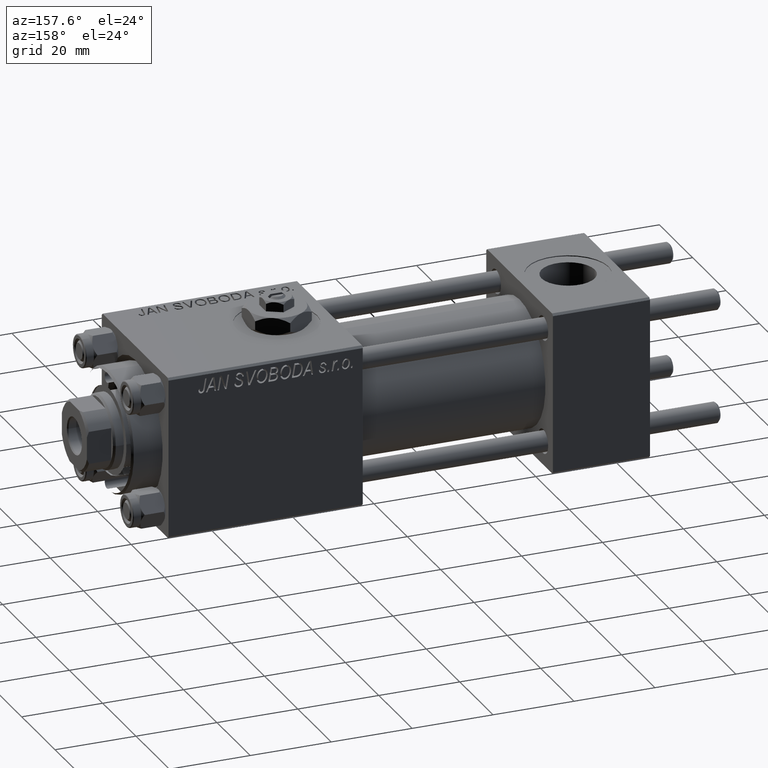
[diagram: clean part render]
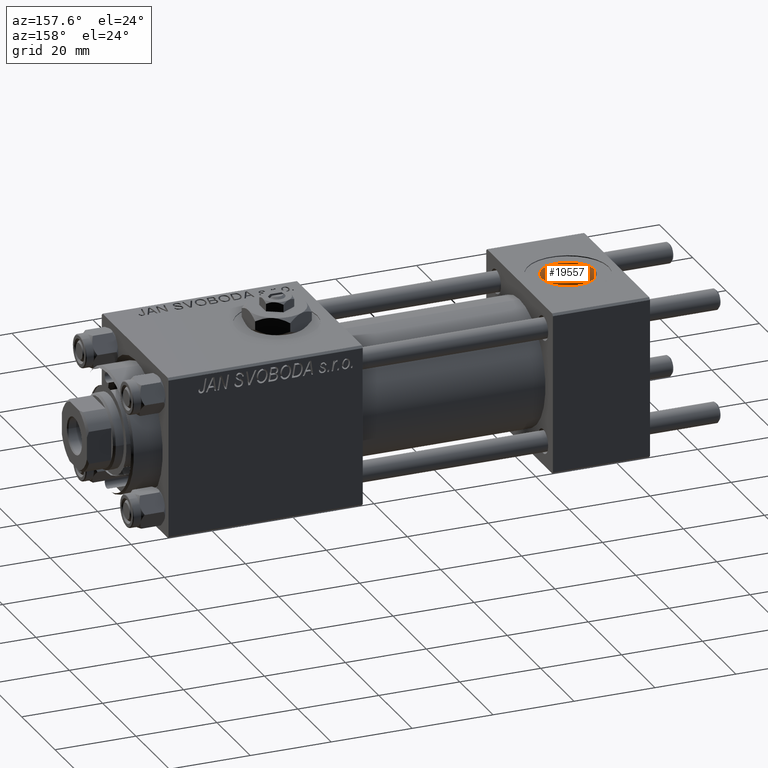
[diagram: same view with one face highlighted and labeled with its STEP entity id]
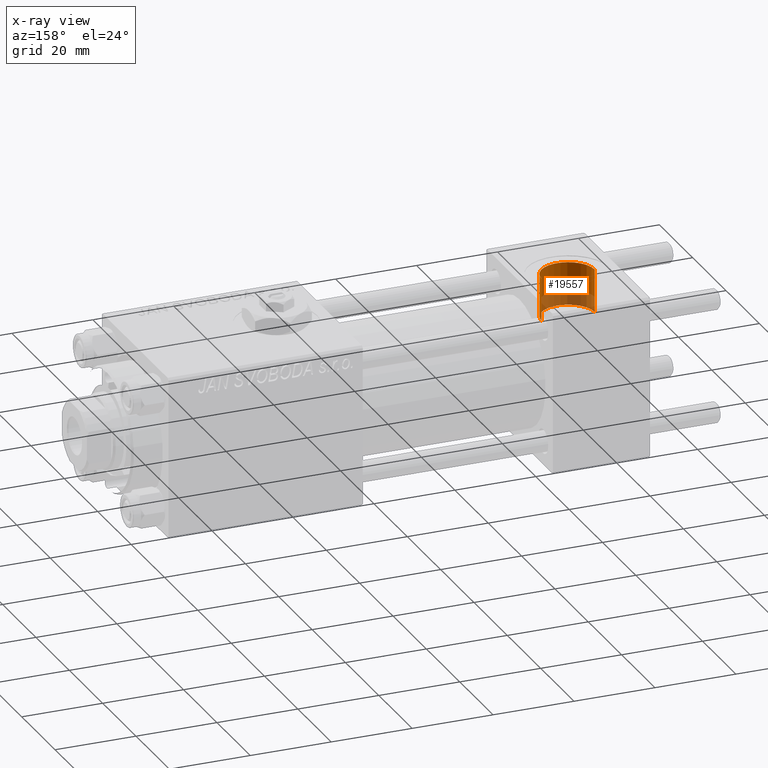
[diagram: x-ray of the same camera — body ghosted, the highlighted face saturated]
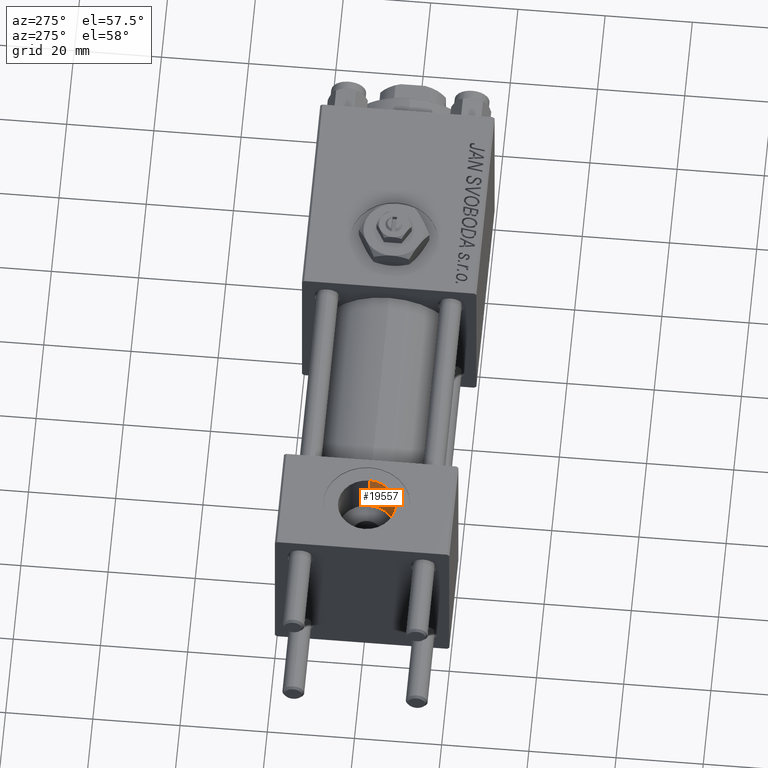
[diagram: same view with one face highlighted and labeled with its STEP entity id]
A machine part, auxiliary view. The second image highlights one B-rep face of the part: STEP entity #19557.
The next image is the same camera in x-ray: the body ghosted, the highlighted face saturated — about 34% of this face is hidden behind the body in this view.
A second angle (auxiliary view) of the same face is appended — the face is thin or edge-on in the first view.
In plain terms, the highlighted cylindrical surface (edge-blend (fillet) strip) has radius 6.58 mm, axis along (0, 0, 1).
Its self-contained STEP definition (entity closure, byte-faithful):
#2219 = VERTEX_POINT ( 'NONE', #29904 ) ;
#3578 = CARTESIAN_POINT ( 'NONE',  ( 5.420000000000000817, 8.058175938389596335E-16, 9.165987261146492315 ) ) ;
#6050 = DIRECTION ( 'NONE',  ( -0.000000000000000000, -0.000000000000000000, -1.000000000000000000 ) ) ;
#6979 = CARTESIAN_POINT ( 'NONE',  ( 5.420000000000000817, 8.058175938389596335E-16, 19.79999999999999716 ) ) ;
#8350 = VECTOR ( 'NONE', #30806, 1000.000000000000000 ) ;
#8401 = ORIENTED_EDGE ( 'NONE', *, *, #31089, .F. ) ;
#10121 = VERTEX_POINT ( 'NONE', #25577 ) ;
#10503 = EDGE_CURVE ( 'NONE', #30425, #2219, #16556, .T. ) ;
#14423 = DIRECTION ( 'NONE',  ( 1.000000000000000000, 0.000000000000000000, 0.000000000000000000 ) ) ;
#14589 = LINE ( 'NONE', #26639, #19523 ) ;
#15503 = CYLINDRICAL_SURFACE ( 'NONE', #19224, 6.579999999999999183 ) ;
#16556 = CIRCLE ( 'NONE', #45891, 6.579999999999999183 ) ;
#17900 = CARTESIAN_POINT ( 'NONE',  ( 12.00000000000000000, 1.540743955509788682E-30, 19.79999999999999716 ) ) ;
#19185 = FACE_OUTER_BOUND ( 'NONE', #51924, .T. ) ;
#19224 = AXIS2_PLACEMENT_3D ( 'NONE', #43851, #31512, #51730 ) ;
#19523 = VECTOR ( 'NONE', #22714, 1000.000000000000000 ) ;
#19557 = ADVANCED_FACE ( 'NONE', ( #19185 ), #15503, .F. ) ;
#19733 = EDGE_CURVE ( 'NONE', #10121, #26275, #30958, .T. ) ;
#19776 = ORIENTED_EDGE ( 'NONE', *, *, #39271, .T. ) ;
#21837 = DIRECTION ( 'NONE',  ( 0.000000000000000000, 0.000000000000000000, 1.000000000000000000 ) ) ;
#22714 = DIRECTION ( 'NONE',  ( -0.000000000000000000, -0.000000000000000000, 1.000000000000000000 ) ) ;
#22945 = CARTESIAN_POINT ( 'NONE',  ( 5.420000000000000817, 8.058175938389596335E-16, 9.199999999999995737 ) ) ;
#25577 = CARTESIAN_POINT ( 'NONE',  ( 18.57999999999999829, 1.540743955509788682E-30, 9.165987261146492315 ) ) ;
#26275 = VERTEX_POINT ( 'NONE', #3578 ) ;
#26639 = CARTESIAN_POINT ( 'NONE',  ( 18.57999999999999829, 1.540743955509788682E-30, 9.199999999999995737 ) ) ;
#29904 = CARTESIAN_POINT ( 'NONE',  ( 18.57999999999999829, 1.540743955509788682E-30, 19.79999999999999716 ) ) ;
#30425 = VERTEX_POINT ( 'NONE', #6979 ) ;
#30806 = DIRECTION ( 'NONE',  ( -0.000000000000000000, -0.000000000000000000, 1.000000000000000000 ) ) ;
#30958 = CIRCLE ( 'NONE', #45226, 6.579999999999999183 ) ;
#31089 = EDGE_CURVE ( 'NONE', #10121, #2219, #14589, .T. ) ;
#31448 = ORIENTED_EDGE ( 'NONE', *, *, #19733, .T. ) ;
#31512 = DIRECTION ( 'NONE',  ( -0.000000000000000000, -0.000000000000000000, 1.000000000000000000 ) ) ;
#32558 = ORIENTED_EDGE ( 'NONE', *, *, #10503, .T. ) ;
#38596 = DIRECTION ( 'NONE',  ( 1.000000000000000000, 0.000000000000000000, 0.000000000000000000 ) ) ;
#39271 = EDGE_CURVE ( 'NONE', #26275, #30425, #46824, .T. ) ;
#42242 = CARTESIAN_POINT ( 'NONE',  ( 12.00000000000000000, 1.540743955509788682E-30, 9.165987261146492315 ) ) ;
#43851 = CARTESIAN_POINT ( 'NONE',  ( 12.00000000000000000, 1.540743955509788682E-30, 9.199999999999995737 ) ) ;
#45226 = AXIS2_PLACEMENT_3D ( 'NONE', #42242, #6050, #14423 ) ;
#45891 = AXIS2_PLACEMENT_3D ( 'NONE', #17900, #21837, #38596 ) ;
#46824 = LINE ( 'NONE', #22945, #8350 ) ;
#51730 = DIRECTION ( 'NONE',  ( 1.000000000000000000, 0.000000000000000000, 0.000000000000000000 ) ) ;
#51924 = EDGE_LOOP ( 'NONE', ( #31448, #19776, #32558, #8401 ) ) ;